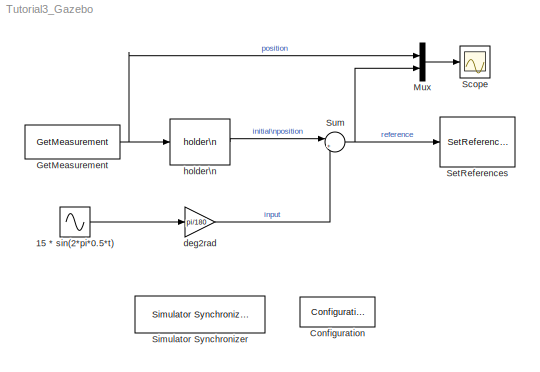
MODEL Tutorial3_Gazebo
KIND model
BLOCK [Sin] 15 * sin(2*pi*0.5*t)
  Amplitude = 15
  Frequency = 2*pi*0.5
  Ports = [0, 1]
  SID = 3
  SampleTime = 0
BLOCK [Reference] Configuration  REF=WBToolboxLibrary/Utilities/Configuration
  ConfigObject = 'WBTConfigRobot'
  ConfigSource = Mask
  ControlBoardsNames = {'right_arm'}
  ControlledJoints = {'r_elbow'}
  GravityVector = [0,0,-9.81]
  LocalName = 'WBT'
  Ports = []
  RobotName = 'icubSim'
  SID = 2
  SourceBlock = WBToolboxLibrary/Utilities/Configuration
  SourceProductName = WholeBodyToolbox
  UrdfFile = 'model.urdf'
BLOCK [Reference] GetMeasurement  REF=WBToolboxLibrary/States/GetMeasurement
  Ports = [0, 1]
  SID = 7
  SourceBlock = WBToolboxLibrary/States/GetMeasurement
  SourceProductName = WholeBodyToolbox
  SourceType = GetMeasurement
  measuredType = Joints Position
BLOCK [Mux] Mux
  DisplayOption = bar
  Inputs = 2
  Ports = [2, 1]
  SID = 10
BLOCK [Scope] Scope
  Floating = off
  NumInputPorts = 1
  Ports = [1]
  SID = 9
  ScopeSpecificationString = Simulink.scopes.TimeScopeBlockCfg('CurrentConfiguration', extmgr.ConfigurationSet(extmgr.Configuration('Core','General UI',true),extmgr.Configuration('Core','Source UI',true),extmgr.Configuration('Sources','WiredSimulink',true),extmgr.Configuration('Visuals','Time Domain',true,'SerializedDisplays',{struct('MinYLimReal','0.44962','MaxYLimReal','1.1122','YLabelReal','','MinYLimMag','0.44962','MaxYLi...<+1413ch>
BLOCK [Reference] SetReferences  REF=WBToolboxLibrary/Actuators/SetReferences
  Ports = [1]
  SID = 8
  SourceBlock = WBToolboxLibrary/Actuators/SetReferences
  SourceProductName = WholeBodyToolbox
  SourceType = SetReferences
  controlType = Position Direct
  refAcceleration = 1000000*(pi/180)
  refSpeed = 10*(pi/180)
BLOCK [Reference] Simulator Synchronizer  REF=WBToolboxLibrary/Utilities/Simulator Synchronizer
  MultiThreadCoSim = auto
  Ports = []
  SID = 1
  SourceBlock = WBToolboxLibrary/Utilities/Simulator Synchronizer
  SourceProductName = WholeBodyToolbox
  SourceType = Simulator Synchronizer
  clientPortName = '/WBT_synchronizer/rpc:o'
  period = 0.01
  serverPortName = '/clock/rpc'
BLOCK [Sum] Sum
  IconShape = round
  InputSameDT = off
  Inputs = |++
  OutDataTypeStr = Inherit: Inherit via internal rule
  Ports = [2, 1]
  SID = 6
  SaturateOnIntegerOverflow = off
BLOCK [Gain] deg2rad
  Gain = pi/180
  OutDataTypeStr = Inherit: Inherit via internal rule
  ParamDataTypeStr = Inherit: Inherit via internal rule
  SID = 4
  SaturateOnIntegerOverflow = off
BLOCK [Reference] holder\n  REF=WBToolboxLibrary/Utilities/holder\n
  Ports = [1, 1]
  SID = 5
  SourceBlock = WBToolboxLibrary/Utilities/holder\n
  SourceProductName = WholeBodyToolbox
  SourceType = Holder
LINE 15 * sin(2*pi*0.5*t):1 -> deg2rad:1
NET GetMeasurement:1 -> Mux:1, holder\n:1
LINE Mux:1 -> Scope:1
NET Sum:1 -> Mux:2, SetReferences:1
LINE deg2rad:1 -> Sum:2
LINE holder\n:1 -> Sum:1
note: NET lines group one-source signal fan-out (src -> all destinations, sorted); 1:1 wires keep LINE
